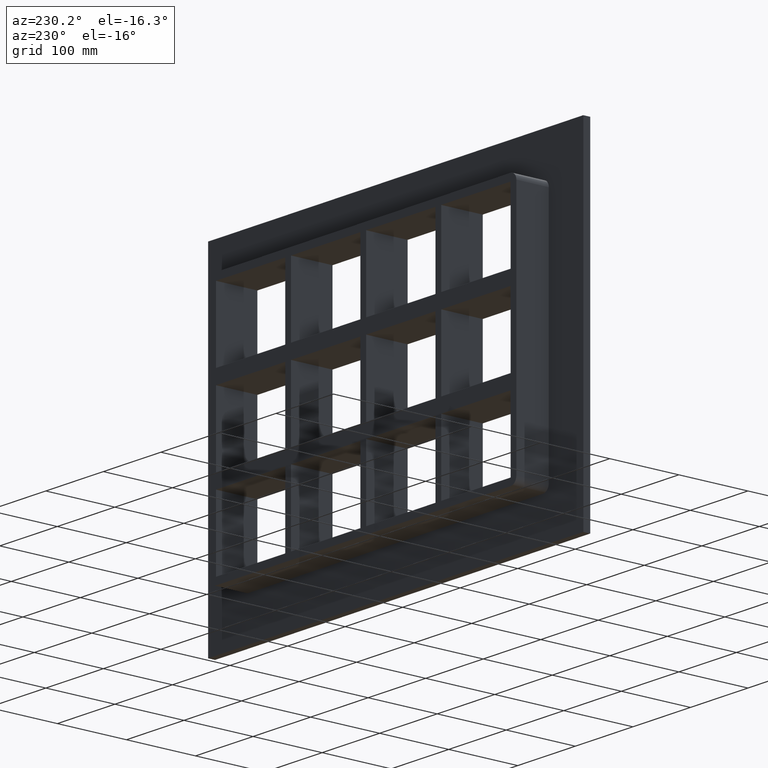
[diagram: clean part render]
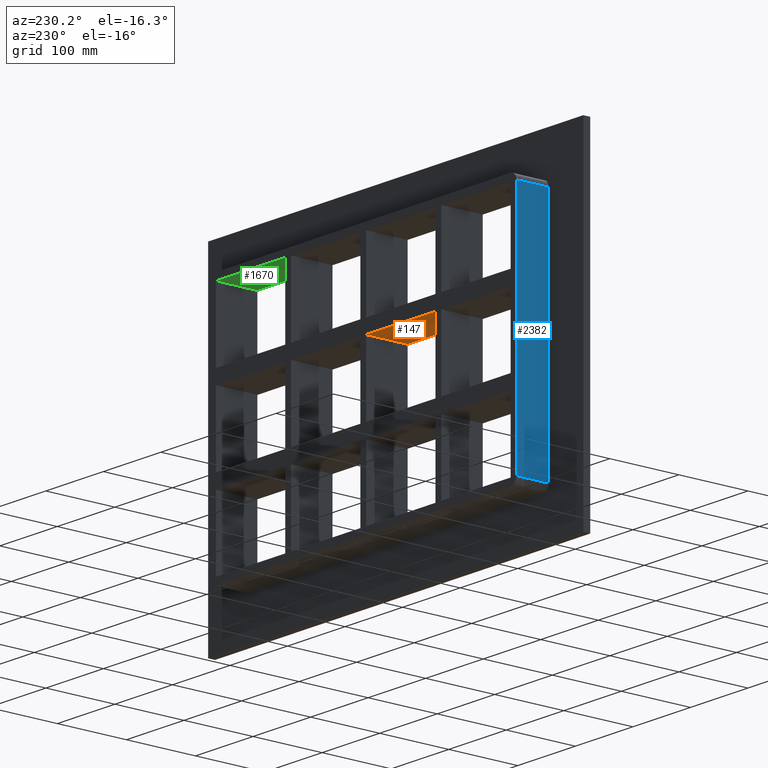
[diagram: same view with three faces highlighted in distinct colors, each labeled with its STEP entity id]
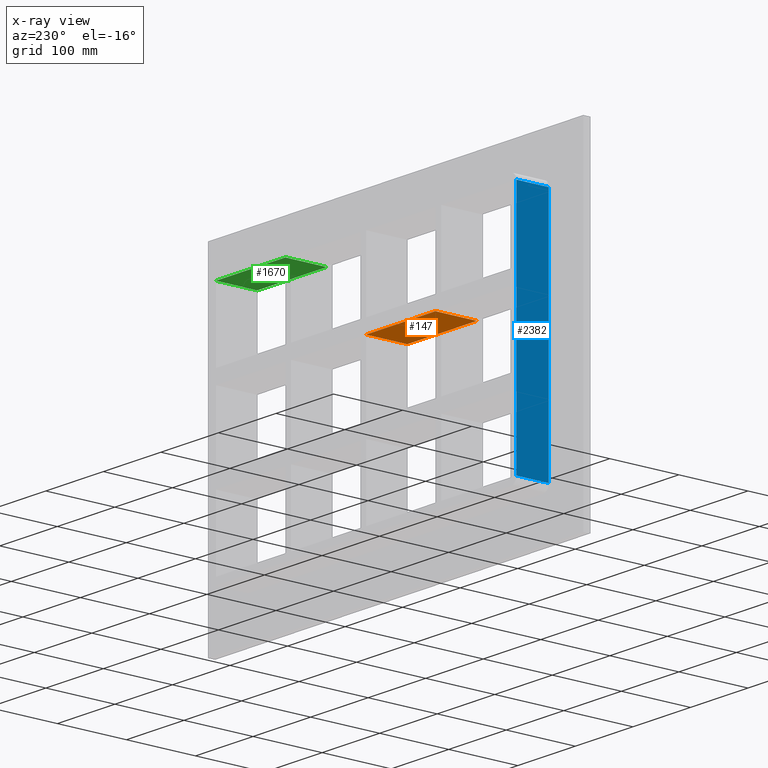
[diagram: x-ray of the same camera — body ghosted, the three highlighted faces saturated]
A machine part, auxiliary view with three faces highlighted in distinct colors.
The next image is the same camera in x-ray (body ghosted, the three faces saturated) — at least one of them is partly hidden behind the body in this view.
Their STEP definitions:

[orange] entity #147 — the highlighted planar face has unit normal (0, 0, -1).
#108=CARTESIAN_POINT('',(256.00000000000364,-3.0,50.499999999990699));
#109=DIRECTION('',(0.0,0.0,-1.0));
#110=DIRECTION('',(-1.0,0.0,0.0));
#111=AXIS2_PLACEMENT_3D('',#108,#109,#110);
#112=PLANE('',#111);
#113=CARTESIAN_POINT('',(-5.00000000000135,-3.0,50.499999999990607));
#114=VERTEX_POINT('',#113);
#115=CARTESIAN_POINT('',(-5.00000000000135,57.0,50.499999999990607));
#116=VERTEX_POINT('',#115);
#117=CARTESIAN_POINT('',(-5.000000000001332,-3.0,50.4999999999906));
#118=DIRECTION('',(0.0,1.0,0.0));
#119=VECTOR('',#118,60.0);
#120=LINE('',#117,#119);
#121=EDGE_CURVE('',#114,#116,#120,.T.);
#122=ORIENTED_EDGE('',*,*,#121,.F.);
#123=CARTESIAN_POINT('',(-125.49999999999272,-3.0,50.499999999990578));
#124=VERTEX_POINT('',#123);
#125=CARTESIAN_POINT('',(-5.000000000001364,-3.0,50.499999999990607));
#126=DIRECTION('',(-1.0,0.0,0.0));
#127=VECTOR('',#126,120.49999999999136);
#128=LINE('',#125,#127);
#129=EDGE_CURVE('',#114,#124,#128,.T.);
#130=ORIENTED_EDGE('',*,*,#129,.T.);
#131=CARTESIAN_POINT('',(-125.49999999999272,57.0,50.499999999990578));
#132=VERTEX_POINT('',#131);
#133=CARTESIAN_POINT('',(-125.49999999999271,57.0,50.499999999990578));
#134=DIRECTION('',(0.0,-1.0,0.0));
#135=VECTOR('',#134,60.0);
#136=LINE('',#133,#135);
#137=EDGE_CURVE('',#132,#124,#136,.T.);
#138=ORIENTED_EDGE('',*,*,#137,.F.);
#139=CARTESIAN_POINT('',(-5.000000000001364,57.0,50.499999999990607));
#140=DIRECTION('',(-1.0,0.0,0.0));
#141=VECTOR('',#140,120.49999999999136);
#142=LINE('',#139,#141);
#143=EDGE_CURVE('',#116,#132,#142,.T.);
#144=ORIENTED_EDGE('',*,*,#143,.F.);
#145=EDGE_LOOP('',(#122,#130,#138,#144));
#146=FACE_OUTER_BOUND('',#145,.T.);
#147=ADVANCED_FACE('',(#146),#112,.T.);

[blue] entity #2382 — the highlighted planar face has unit normal (-1, 0, 0).
#722=CARTESIAN_POINT('',(-266.0,57.0,-171.50000000000006));
#723=VERTEX_POINT('',#722);
#731=CARTESIAN_POINT('',(-266.0,57.0,171.5));
#732=VERTEX_POINT('',#731);
#733=CARTESIAN_POINT('',(-266.0,57.0,-171.50000000000006));
#734=DIRECTION('',(0.0,0.0,1.0));
#735=VECTOR('',#734,343.00000000000006);
#736=LINE('',#733,#735);
#737=EDGE_CURVE('',#723,#732,#736,.T.);
#1881=CARTESIAN_POINT('',(-266.0,10.0,-171.50000000000006));
#1882=VERTEX_POINT('',#1881);
#1932=CARTESIAN_POINT('',(-266.0,10.0,171.5));
#1933=VERTEX_POINT('',#1932);
#1941=CARTESIAN_POINT('',(-266.0,10.0,-171.50000000000006));
#1942=DIRECTION('',(0.0,0.0,1.0));
#1943=VECTOR('',#1942,343.0);
#1944=LINE('',#1941,#1943);
#1945=EDGE_CURVE('',#1882,#1933,#1944,.T.);
#2355=CARTESIAN_POINT('',(-266.0,10.0,-171.50000000000006));
#2356=DIRECTION('',(0.0,1.0,0.0));
#2357=VECTOR('',#2356,47.0);
#2358=LINE('',#2355,#2357);
#2359=EDGE_CURVE('',#1882,#723,#2358,.T.);
#2366=CARTESIAN_POINT('',(-266.0,0.0,-181.50000000000006));
#2367=DIRECTION('',(-1.0,0.0,0.0));
#2368=DIRECTION('',(0.0,0.0,1.0));
#2369=AXIS2_PLACEMENT_3D('',#2366,#2367,#2368);
#2370=PLANE('',#2369);
#2371=ORIENTED_EDGE('',*,*,#1945,.T.);
#2372=CARTESIAN_POINT('',(-266.0,57.0,171.5));
#2373=DIRECTION('',(0.0,-1.0,0.0));
#2374=VECTOR('',#2373,47.0);
#2375=LINE('',#2372,#2374);
#2376=EDGE_CURVE('',#732,#1933,#2375,.T.);
#2377=ORIENTED_EDGE('',*,*,#2376,.F.);
#2378=ORIENTED_EDGE('',*,*,#737,.F.);
#2379=ORIENTED_EDGE('',*,*,#2359,.F.);
#2380=EDGE_LOOP('',(#2371,#2377,#2378,#2379));
#2381=FACE_OUTER_BOUND('',#2380,.T.);
#2382=ADVANCED_FACE('',(#2381),#2370,.T.);

[green] entity #1670 — the highlighted planar face has unit normal (0, 0, 1).
#456=CARTESIAN_POINT('',(256.0,-3.0,171.5));
#457=VERTEX_POINT('',#456);
#464=CARTESIAN_POINT('',(256.0,57.0,171.5));
#465=VERTEX_POINT('',#464);
#466=CARTESIAN_POINT('',(256.0,-3.0,171.5));
#467=DIRECTION('',(0.0,1.0,0.0));
#468=VECTOR('',#467,60.0);
#469=LINE('',#466,#468);
#470=EDGE_CURVE('',#457,#465,#469,.T.);
#518=CARTESIAN_POINT('',(135.50000000000728,57.0,171.5));
#519=VERTEX_POINT('',#518);
#526=CARTESIAN_POINT('',(135.50000000000728,-3.0,171.5));
#527=VERTEX_POINT('',#526);
#528=CARTESIAN_POINT('',(135.50000000000728,-3.0,171.5));
#529=DIRECTION('',(0.0,1.0,0.0));
#530=VECTOR('',#529,60.000000000000007);
#531=LINE('',#528,#530);
#532=EDGE_CURVE('',#527,#519,#531,.T.);
#792=CARTESIAN_POINT('',(256.00000000000006,57.0,171.5));
#793=DIRECTION('',(-1.0,0.0,0.0));
#794=VECTOR('',#793,120.49999999999278);
#795=LINE('',#792,#794);
#796=EDGE_CURVE('',#465,#519,#795,.T.);
#1493=CARTESIAN_POINT('',(135.50000000000728,-3.0,171.5));
#1494=DIRECTION('',(1.0,0.0,0.0));
#1495=VECTOR('',#1494,120.49999999999278);
#1496=LINE('',#1493,#1495);
#1497=EDGE_CURVE('',#527,#457,#1496,.T.);
#1659=CARTESIAN_POINT('',(-256.0,0.0,171.5));
#1660=DIRECTION('',(0.0,0.0,1.0));
#1661=DIRECTION('',(1.0,0.0,0.0));
#1662=AXIS2_PLACEMENT_3D('',#1659,#1660,#1661);
#1663=PLANE('',#1662);
#1664=ORIENTED_EDGE('',*,*,#532,.T.);
#1665=ORIENTED_EDGE('',*,*,#796,.F.);
#1666=ORIENTED_EDGE('',*,*,#470,.F.);
#1667=ORIENTED_EDGE('',*,*,#1497,.F.);
#1668=EDGE_LOOP('',(#1664,#1665,#1666,#1667));
#1669=FACE_OUTER_BOUND('',#1668,.T.);
#1670=ADVANCED_FACE('',(#1669),#1663,.F.);